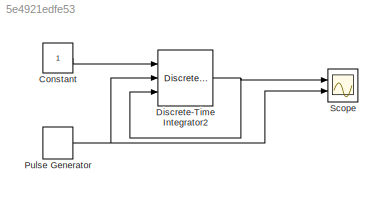
MODEL slx_5e4921edfe53
KIND model
BLOCK [Constant] Constant
BLOCK [DiscreteIntegrator] Discrete-Time Integrator2
  ExternalReset = falling
  ICPrevOutput = DiscIntNeverNeededParam
  ICPrevScaledInput = DiscIntNeverNeededParam
  InitialConditionSource = external
  Ports = [3, 1]
BLOCK [DiscretePulseGenerator] Pulse Generator
  Period = 6
  Ports = [0, 1]
  PulseType = Time based
  PulseWidth = 50
BLOCK [Scope] Scope
  DataFormat = StructureWithTime
  Floating = off
  NumInputPorts = 2
  Ports = [2]
  SampleTime = 0
  ShowLegends = off
  YMax = 5~5
  YMin = -5~-5
LINE Constant:1 -> Discrete-Time Integrator2:1
NET Discrete-Time Integrator2:1 -> Discrete-Time Integrator2:3, Scope:1
NET Pulse Generator:1 -> Discrete-Time Integrator2:2, Scope:2
note: NET lines group one-source signal fan-out (src -> all destinations, sorted); 1:1 wires keep LINE
